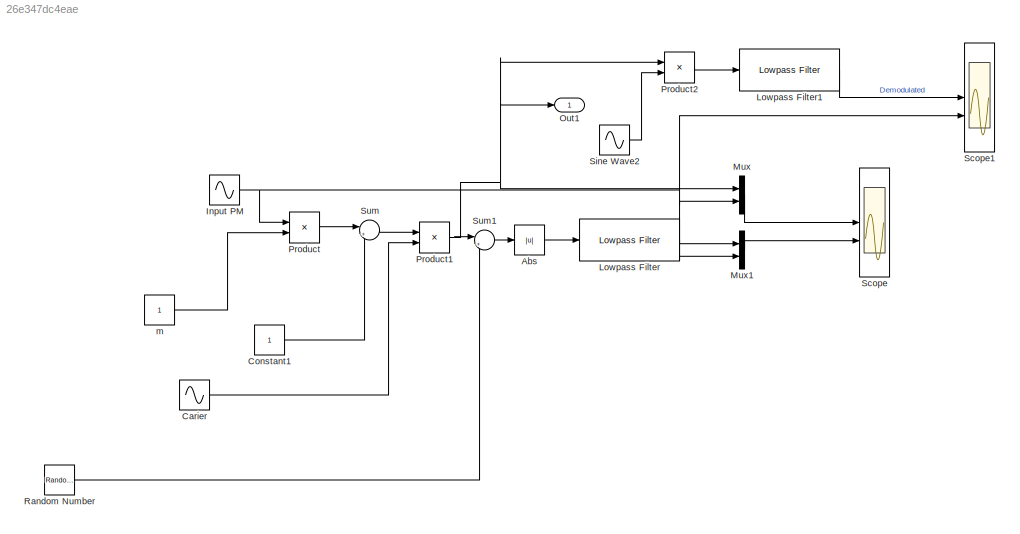
MODEL slx_26e347dc4eae
KIND model
CONFIG AbsTol = auto
CONFIG EnableMultiTasking = off
CONFIG FixedStep = auto
CONFIG MaxStep = auto
CONFIG MinStep = auto
CONFIG RelTol = 1e-3
CONFIG SampleTimeConstraint = Unconstrained
CONFIG SolverName = VariableStepAuto
CONFIG StartTime = 0.0
CONFIG StopTime = 1
WORKSPACE source: mxarray member
WORKSPACE variance: Simulink.Parameter (value not decoded)
BLOCK [Abs] Abs
  SaturateOnIntegerOverflow = off
BLOCK [Sin] Carier
  Frequency = 100*2*pi
  SampleTime = 0.0001
BLOCK [Constant] Constant1
BLOCK [Sin] Input PM
  Frequency = 2*2*pi
  SampleTime = 0.0001
BLOCK [Reference] Lowpass Filter  REF=dspfdesign/Lowpass Filter
  SourceBlock = dspfdesign/Lowpass Filter
  SourceType = dsp.simulink.LowpassFilter
BLOCK [Reference] Lowpass Filter1  REF=dspfdesign/Lowpass Filter
  SourceBlock = dspfdesign/Lowpass Filter
  SourceType = dsp.simulink.LowpassFilter
BLOCK [Mux] Mux
  DisplayOption = bar
  Inputs = 2
BLOCK [Mux] Mux1
  DisplayOption = bar
  Inputs = 2
BLOCK [Outport] Out1
BLOCK [Product] Product
BLOCK [Product] Product1
BLOCK [Product] Product2
BLOCK [RandomNumber] Random Number
  Mean = 0.5
  SampleTime = 0.0001
  Variance = variance
BLOCK [Scope] Scope
  Floating = off
  NumInputPorts = 2
  ScopeSpecificationString = Simulink.scopes.TimeScopeBlockCfg('CurrentConfiguration', extmgr.ConfigurationSet(extmgr.Configuration('Core','General UI',true,'FigureColor',[1 1 1]),extmgr.Configuration('Core','Source UI',true),extmgr.Configuration('Sources','WiredSimulink',true),extmgr.Configuration('Visuals','Time Domain',true,'SerializedDisplays',{struct('MinYLimReal','-2.49938','MaxYLimReal','2.49938','YLabelReal','','MinYL...<+2096ch>
BLOCK [Scope] Scope1
  Floating = off
  NumInputPorts = 2
  ScopeSpecificationString = Simulink.scopes.TimeScopeBlockCfg('CurrentConfiguration', extmgr.ConfigurationSet(extmgr.Configuration('Core','General UI',true,'FigureColor',[1 1 1]),extmgr.Configuration('Core','Source UI',true),extmgr.Configuration('Sources','WiredSimulink',true,'DataLoggingVariableName','ScopeData1'),extmgr.Configuration('Visuals','Time Domain',true,'SerializedDisplays',{struct('MinYLimReal','-0.14447','MaxYLi...<+2104ch>
BLOCK [Sin] Sine Wave2
  Frequency = 100*2*pi
  SampleTime = 0.0001
BLOCK [Sum] Sum
  Inputs = |++
BLOCK [Sum] Sum1
  Inputs = |++
BLOCK [Constant] m
LINE Abs:1 -> Lowpass Filter:1
LINE Carier:1 -> Product1:2
LINE Constant1:1 -> Sum:2
NET Input PM:1 -> Mux1:2, Mux:2, Product:1, Scope1:2
LINE Lowpass Filter1:1 -> Scope1:1
LINE Lowpass Filter:1 -> Mux1:1
LINE Mux1:1 -> Scope:2
LINE Mux:1 -> Scope:1
NET Product1:1 -> Mux:1, Out1:1, Product2:1, Sum1:1
LINE Product2:1 -> Lowpass Filter1:1
LINE Product:1 -> Sum:1
LINE Random Number:1 -> Sum1:2
LINE Sine Wave2:1 -> Product2:2
LINE Sum1:1 -> Abs:1
LINE Sum:1 -> Product1:1
LINE m:1 -> Product:2
note: NET lines group one-source signal fan-out (src -> all destinations, sorted); 1:1 wires keep LINE
